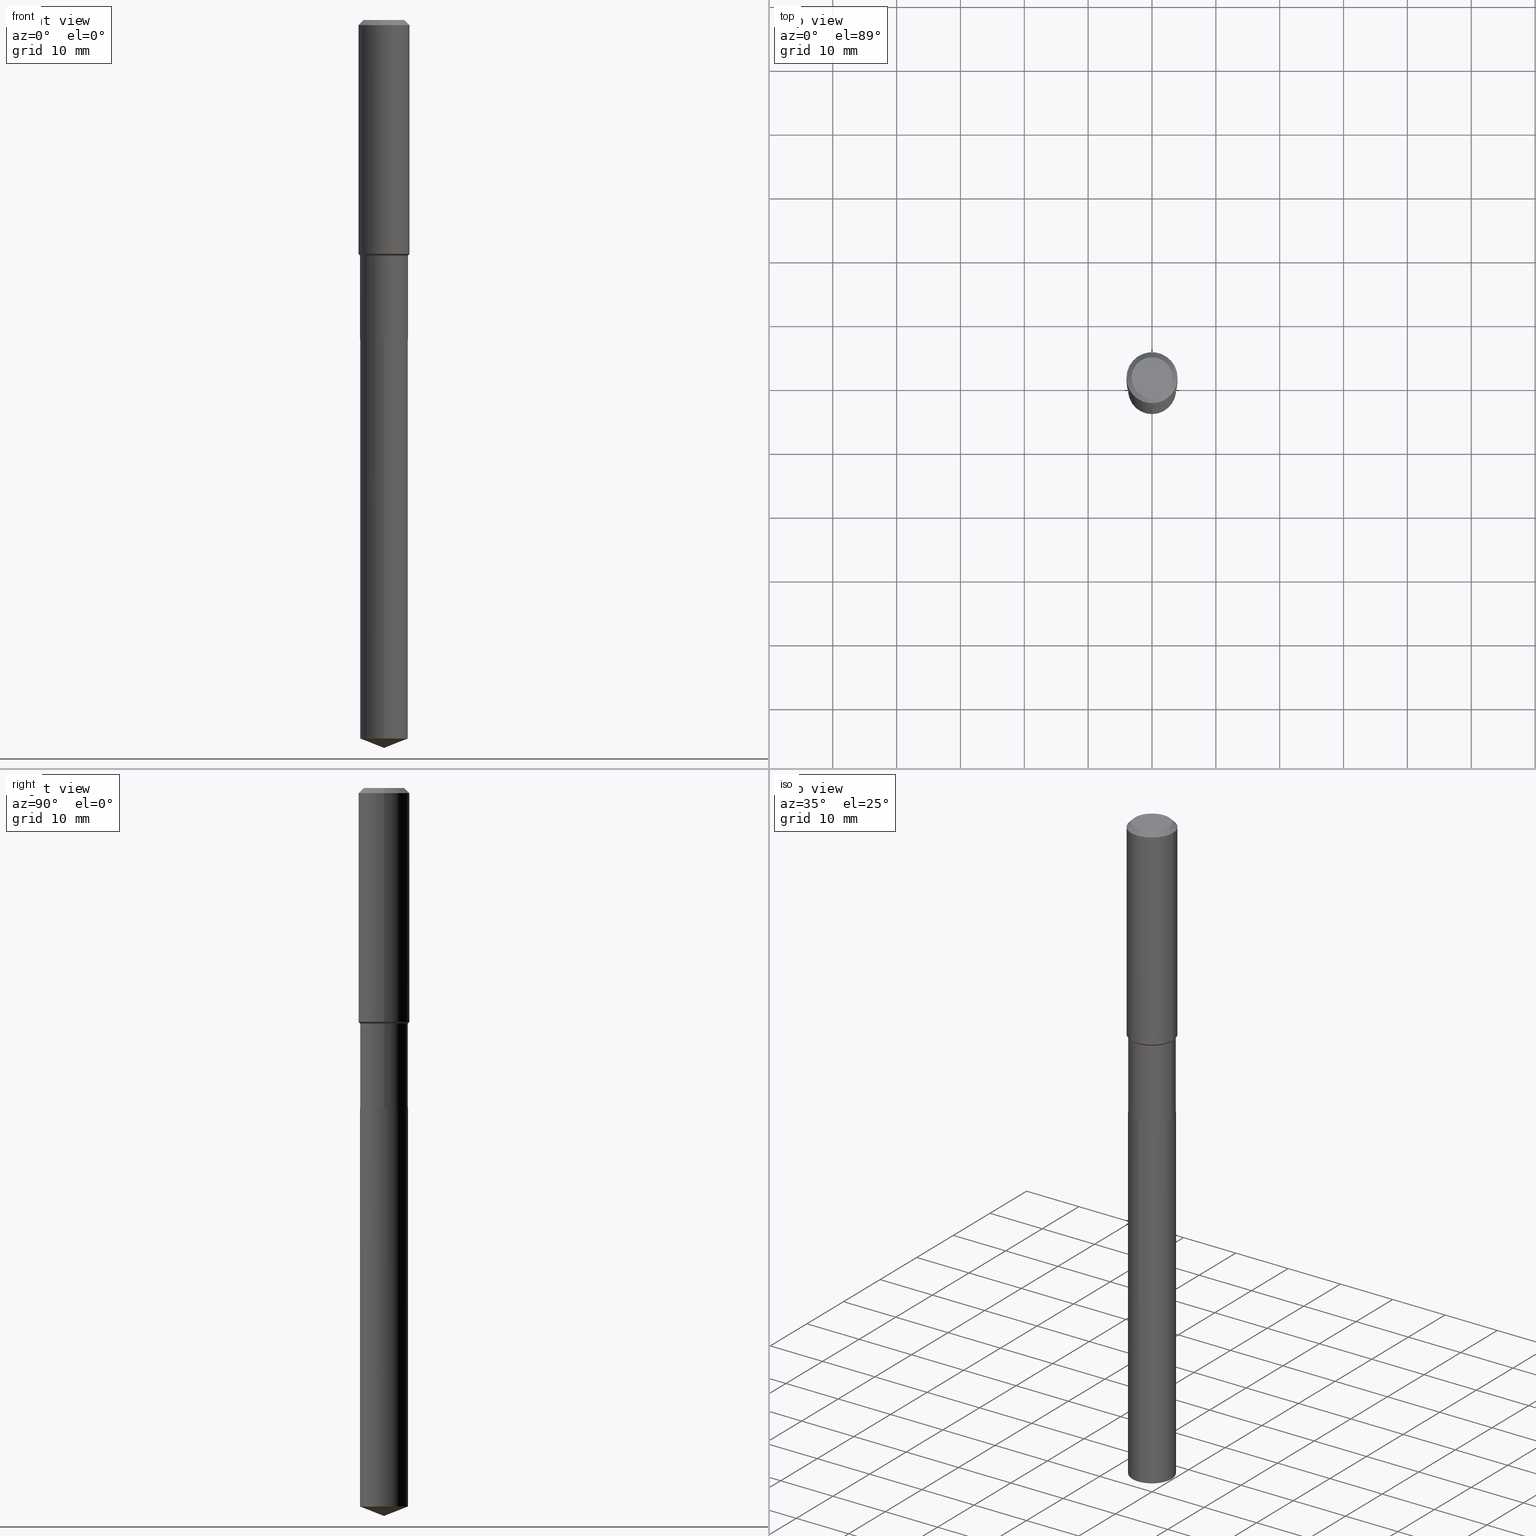
[diagram: canonical four-view strip — front | top / right | iso, engineering-drawing reading convention]
A machine part, canonical four-view strip (front | top / right | iso — engineering-drawing reading convention). The complete STEP part file that produces these views, byte-faithful:
ISO-10303-21;
HEADER;
FILE_DESCRIPTION (( 'STEP AP203' ),
    '1' );
FILE_NAME ('66651.STEP',
    '2024-04-25T02:53:25',
    ( '' ),
    ( '' ),
    'SwSTEP 2.0',
    'SolidWorks 2023',
    '' );
FILE_SCHEMA (( 'CONFIG_CONTROL_DESIGN' ));
ENDSEC;

DATA;
#1 = DIRECTION ( 'NONE',  ( -2.445397477310179660E-29, 3.491583485851871163E-15, 1.000000000000000000 ) ) ;
#2 = ORIENTED_EDGE ( 'NONE', *, *, #364, .T. ) ;
#3 = CC_DESIGN_PERSON_AND_ORGANIZATION_ASSIGNMENT ( #377, #331, ( #363 ) ) ;
#4 = MECHANICAL_CONTEXT ( 'NONE', #149, 'mechanical' ) ;
#5 = ADVANCED_FACE ( 'NONE', ( #78 ), #99, .T. ) ;
#6 = DIRECTION ( 'NONE',  ( -2.445397477310179380E-29, 3.491583485851871163E-15, 1.000000000000000000 ) ) ;
#7 = ORIENTED_EDGE ( 'NONE', *, *, #326, .F. ) ;
#8 = VERTEX_POINT ( 'NONE', #189 ) ;
#9 = CARTESIAN_POINT ( 'NONE',  ( 1.083334689510655990E-28, -1.546765035066167871E-14, -4.430039118275453269 ) ) ;
#10 = EDGE_CURVE ( 'NONE', #184, #261, #487, .T. ) ;
#11 = CIRCLE ( 'NONE', #145, 0.1575000000000000011 ) ;
#12 = FACE_OUTER_BOUND ( 'NONE', #142, .T. ) ;
#13 = EDGE_LOOP ( 'NONE', ( #130, #382 ) ) ;
#14 = CYLINDRICAL_SURFACE ( 'NONE', #399, 0.1476500000000000035 ) ;
#15 = CARTESIAN_POINT ( 'NONE',  ( 0.000000000000000000, 0.000000000000000000, 0.000000000000000000 ) ) ;
#16 = AXIS2_PLACEMENT_3D ( 'NONE', #15, #192, #379 ) ;
#17 = CARTESIAN_POINT ( 'NONE',  ( -8.529991786413033970E-28, 1.217931928410080037E-13, 34.88187874015748235 ) ) ;
#18 = DIRECTION ( 'NONE',  ( -2.445468806185136597E-29, 3.491481338843145583E-15, 1.000000000000000000 ) ) ;
#19 = EDGE_CURVE ( 'NONE', #422, #332, #454, .T. ) ;
#20 = CARTESIAN_POINT ( 'NONE',  ( 0.000000000000000000, 0.000000000000000000, 0.000000000000000000 ) ) ;
#21 = EDGE_LOOP ( 'NONE', ( #133, #483, #415, #67 ) ) ;
#22 = ADVANCED_FACE ( 'NONE', ( #310 ), #237, .T. ) ;
#23 = CALENDAR_DATE ( 2024, 24, 4 ) ;
#24 = DIRECTION ( 'NONE',  ( 1.000000000000000000, -6.982962677686267499E-15, 0.000000000000000000 ) ) ;
#25 = PERSON_AND_ORGANIZATION ( #357, #400 ) ;
#26 = ORIENTED_EDGE ( 'NONE', *, *, #210, .F. ) ;
#27 = DIRECTION ( 'NONE',  ( 1.000000000000000000, -6.982962677686266711E-15, 0.000000000000000000 ) ) ;
#28 = PLANE ( 'NONE',  #405 ) ;
#29 = DIRECTION ( 'NONE',  ( -2.445468806185136597E-29, 3.491481338843145583E-15, 1.000000000000000000 ) ) ;
#30 = VERTEX_POINT ( 'NONE', #93 ) ;
#31 = CONICAL_SURFACE ( 'NONE', #434, 0.1471500000000000030, 0.7853981633975678500 ) ;
#32 = VECTOR ( 'NONE', #34, 39.37007874015748143 ) ;
#33 = CARTESIAN_POINT ( 'NONE',  ( 7.703226739483228723E-31, -1.099816621735597661E-16, -0.03150000000000019451 ) ) ;
#34 = DIRECTION ( 'NONE',  ( -2.445468806185136877E-29, 3.491481338843145188E-15, 1.000000000000000000 ) ) ;
#35 = CARTESIAN_POINT ( 'NONE',  ( 1.049116349349836070E-15, 0.1476499999999931201, -1.968500000000000361 ) ) ;
#36 = DIRECTION ( 'NONE',  ( -2.445397477310179660E-29, 3.491583485851871163E-15, 1.000000000000000000 ) ) ;
#37 = DIRECTION ( 'NONE',  ( 6.982962677686265922E-15, 1.000000000000000000, -3.491583485851871163E-15 ) ) ;
#38 = AXIS2_PLACEMENT_3D ( 'NONE', #95, #407, #370 ) ;
#39 = APPROVAL ( #367, 'UNSPECIFIED' ) ;
#40 = DIRECTION ( 'NONE',  ( -0.7071067811866320607, 7.493145998870660238E-15, 0.7071067811864629737 ) ) ;
#41 = ORIENTED_EDGE ( 'NONE', *, *, #480, .F. ) ;
#42 = DIRECTION ( 'NONE',  ( -2.445468806185136597E-29, 3.491481338843145583E-15, 1.000000000000000000 ) ) ;
#43 = ORIENTED_EDGE ( 'NONE', *, *, #349, .T. ) ;
#44 = ORIENTED_EDGE ( 'NONE', *, *, #356, .F. ) ;
#45 = CARTESIAN_POINT ( 'NONE',  ( 3.550331612819581366E-29, -5.068932607732478922E-15, -1.451799999999999979 ) ) ;
#46 = ORIENTED_EDGE ( 'NONE', *, *, #275, .T. ) ;
#47 = VECTOR ( 'NONE', #276, 39.37007874015748143 ) ;
#48 = PERSON_AND_ORGANIZATION_ROLE ( 'design_owner' ) ;
#49 = DIRECTION ( 'NONE',  ( -6.497071151882111159E-15, -0.9304175679820234635, 0.3665012267243001332 ) ) ;
#50 = ADVANCED_FACE ( 'NONE', ( #340 ), #404, .T. ) ;
#51 = DIRECTION ( 'NONE',  ( -2.445468806185136597E-29, 3.491481338843145583E-15, 1.000000000000000000 ) ) ;
#52 = DATE_AND_TIME ( #394, #235 ) ;
#53 = FACE_OUTER_BOUND ( 'NONE', #21, .T. ) ;
#54 = CARTESIAN_POINT ( 'NONE',  ( 0.1575000000000000011, -1.190510096822576026E-15, -0.03150000000000019451 ) ) ;
#55 = ADVANCED_BREP_SHAPE_REPRESENTATION ( '66651', ( #163, #335, #16 ), #328 ) ;
#56 = AXIS2_PLACEMENT_3D ( 'NONE', #239, #247, #474 ) ;
#57 = DIRECTION ( 'NONE',  ( -1.000000000000000000, 6.982962677686265922E-15, -4.876176775795935793E-29 ) ) ;
#58 = CALENDAR_DATE ( 2024, 24, 4 ) ;
#59 = CARTESIAN_POINT ( 'NONE',  ( 0.1471500000000000030, -7.900523973534265784E-15, -1.968500000000000139 ) ) ;
#60 = DATE_TIME_ROLE ( 'classification_date' ) ;
#61 = VERTEX_POINT ( 'NONE', #318 ) ;
#62 = LINE ( 'NONE', #319, #178 ) ;
#63 = ADVANCED_FACE ( 'NONE', ( #413 ), #31, .T. ) ;
#64 = FACE_OUTER_BOUND ( 'NONE', #372, .T. ) ;
#65 = PLANE ( 'NONE',  #479 ) ;
#66 = VECTOR ( 'NONE', #113, 39.37007874015748143 ) ;
#67 = ORIENTED_EDGE ( 'NONE', *, *, #115, .F. ) ;
#68 = CIRCLE ( 'NONE', #38, 0.1575000000000000011 ) ;
#69 = AXIS2_PLACEMENT_3D ( 'NONE', #448, #134, #79 ) ;
#70 = PERSON_AND_ORGANIZATION ( #357, #400 ) ;
#71 = EDGE_LOOP ( 'NONE', ( #2, #339, #212, #7 ) ) ;
#72 = CARTESIAN_POINT ( 'NONE',  ( 4.813905344975441835E-29, -6.872981015512731707E-15, -1.968500000000000139 ) ) ;
#73 = ORIENTED_EDGE ( 'NONE', *, *, #250, .T. ) ;
#74 = VECTOR ( 'NONE', #159, 39.37007874015748143 ) ;
#75 = AXIS2_PLACEMENT_3D ( 'NONE', #218, #329, #455 ) ;
#76 = DIRECTION ( 'NONE',  ( -2.445468806185136597E-29, 3.491481338843145583E-15, 1.000000000000000000 ) ) ;
#77 = EDGE_CURVE ( 'NONE', #30, #261, #139, .T. ) ;
#78 = FACE_OUTER_BOUND ( 'NONE', #220, .T. ) ;
#79 = DIRECTION ( 'NONE',  ( 1.000000000000000000, -6.982962677686266711E-15, 4.876176775795935793E-29 ) ) ;
#80 = ORIENTED_EDGE ( 'NONE', *, *, #364, .F. ) ;
#81 = EDGE_CURVE ( 'NONE', #424, #124, #150, .T. ) ;
#82 = PERSON_AND_ORGANIZATION ( #357, #400 ) ;
#83 = CARTESIAN_POINT ( 'NONE',  ( -0.1476500000000000035, -4.920967591938107008E-15, -1.968000000000000194 ) ) ;
#84 = ORIENTED_EDGE ( 'NONE', *, *, #277, .F. ) ;
#85 = DIRECTION ( 'NONE',  ( -6.982962677686266711E-15, -1.000000000000000000, 3.700437512582815297E-15 ) ) ;
#86 = AXIS2_PLACEMENT_3D ( 'NONE', #272, #90, #435 ) ;
#87 = CC_DESIGN_DATE_AND_TIME_ASSIGNMENT ( #470, #60, ( #179 ) ) ;
#88 = DIRECTION ( 'NONE',  ( -2.438088387897960049E-29, 3.491481338843145188E-15, 1.000000000000000000 ) ) ;
#89 = CARTESIAN_POINT ( 'NONE',  ( 1.136379234426400663E-28, -1.512435428908050663E-14, -4.488199999999999079 ) ) ;
#90 = DIRECTION ( 'NONE',  ( -2.445468806185136597E-29, 3.491481338843145583E-15, 1.000000000000000000 ) ) ;
#91 = FACE_OUTER_BOUND ( 'NONE', #222, .T. ) ;
#92 = EDGE_LOOP ( 'NONE', ( #104, #227, #462 ) ) ;
#93 = CARTESIAN_POINT ( 'NONE',  ( 1.049116349349896615E-15, 0.1476499999999931201, -1.968500000000000583 ) ) ;
#94 = EDGE_LOOP ( 'NONE', ( #396, #111, #155, #389 ) ) ;
#95 = CARTESIAN_POINT ( 'NONE',  ( 7.703226739483228723E-31, -1.099816621735597661E-16, -0.03150000000000019451 ) ) ;
#96 = ORIENTED_EDGE ( 'NONE', *, *, #411, .F. ) ;
#97 = EDGE_LOOP ( 'NONE', ( #230, #43 ) ) ;
#98 = EDGE_CURVE ( 'NONE', #422, #233, #352, .T. ) ;
#99 = CONICAL_SURFACE ( 'NONE', #224, 0.1476499999999999480, 0.7853981633974509435 ) ;
#100 = ORIENTED_EDGE ( 'NONE', *, *, #115, .T. ) ;
#101 = CARTESIAN_POINT ( 'NONE',  ( 0.1575000000000001676, -6.134358138280462387E-15, -1.441949999999999843 ) ) ;
#102 = DIRECTION ( 'NONE',  ( -2.445468806185136877E-29, 3.491481338843145188E-15, 1.000000000000000000 ) ) ;
#103 = FACE_OUTER_BOUND ( 'NONE', #97, .T. ) ;
#104 = ORIENTED_EDGE ( 'NONE', *, *, #231, .F. ) ;
#105 = CARTESIAN_POINT ( 'NONE',  ( 2.270601667668166120E-29, -1.051513663727236721E-14, -1.968500000000000139 ) ) ;
#106 = CARTESIAN_POINT ( 'NONE',  ( 0.1260000000000000009, -1.027466422270894443E-15, 3.860086710919128072E-18 ) ) ;
#107 = AXIS2_PLACEMENT_3D ( 'NONE', #9, #144, #457 ) ;
#108 = ORIENTED_EDGE ( 'NONE', *, *, #81, .T. ) ;
#109 = APPLICATION_PROTOCOL_DEFINITION ( 'international standard', 'config_control_design', 1994, #381 ) ;
#110 = LINE ( 'NONE', #430, #438 ) ;
#111 = ORIENTED_EDGE ( 'NONE', *, *, #325, .T. ) ;
#112 = PRODUCT_DEFINITION_SHAPE ( 'NONE', 'NONE',  #238 ) ;
#113 = DIRECTION ( 'NONE',  ( -0.7071067811865451302, 2.468850131082231817E-15, -0.7071067811865499042 ) ) ;
#114 = CYLINDRICAL_SURFACE ( 'NONE', #320, 0.1575000000000000844 ) ;
#115 = EDGE_CURVE ( 'NONE', #164, #486, #465, .T. ) ;
#116 = DIRECTION ( 'NONE',  ( -2.445468806185136597E-29, 3.491481338843145583E-15, 1.000000000000000000 ) ) ;
#117 = VECTOR ( 'NONE', #6, 39.37007874015748143 ) ;
#118 = DIRECTION ( 'NONE',  ( -6.982962677686266711E-15, -1.000000000000000000, 3.700437512582815297E-15 ) ) ;
#119 = DIRECTION ( 'NONE',  ( 1.000000000000000000, -6.982962677686265922E-15, 4.876176775795935793E-29 ) ) ;
#120 = COORDINATED_UNIVERSAL_TIME_OFFSET ( 5, 0, .BEHIND. ) ;
#121 = CARTESIAN_POINT ( 'NONE',  ( 7.703226739483228723E-31, -1.099816621735597661E-16, -0.03150000000000019451 ) ) ;
#122 = VECTOR ( 'NONE', #246, 39.37007874015748143 ) ;
#123 = CALENDAR_DATE ( 2024, 24, 4 ) ;
#124 = VERTEX_POINT ( 'NONE', #401 ) ;
#125 = CARTESIAN_POINT ( 'NONE',  ( 0.1476499999999999480, -6.099967047092856006E-15, -1.451799999999999979 ) ) ;
#126 = ADVANCED_FACE ( 'NONE', ( #91 ), #304, .T. ) ;
#127 = LINE ( 'NONE', #54, #287 ) ;
#128 = EDGE_LOOP ( 'NONE', ( #259, #46, #100, #44 ) ) ;
#129 = ORIENTED_EDGE ( 'NONE', *, *, #277, .T. ) ;
#130 = ORIENTED_EDGE ( 'NONE', *, *, #480, .T. ) ;
#131 = CIRCLE ( 'NONE', #311, 0.1476499999999999480 ) ;
#132 = VECTOR ( 'NONE', #40, 39.37007874015748143 ) ;
#133 = ORIENTED_EDGE ( 'NONE', *, *, #411, .T. ) ;
#134 = DIRECTION ( 'NONE',  ( -2.445468806185136597E-29, 3.491481338843145583E-15, 1.000000000000000000 ) ) ;
#135 = LINE ( 'NONE', #173, #327 ) ;
#136 = CARTESIAN_POINT ( 'NONE',  ( 0.1575000000000000011, -1.209798283909146741E-15, -0.03150000000000019451 ) ) ;
#137 = CARTESIAN_POINT ( 'NONE',  ( -1.031034439360329161E-15, -0.1476500000000068868, -1.968499999999999250 ) ) ;
#138 = APPROVAL_DATE_TIME ( #172, #39 ) ;
#139 = CIRCLE ( 'NONE', #204, 0.1476500000000000035 ) ;
#140 = ORIENTED_EDGE ( 'NONE', *, *, #275, .F. ) ;
#141 = UNCERTAINTY_MEASURE_WITH_UNIT (LENGTH_MEASURE( 1.000000000000000082E-05 ), #337, 'distance_accuracy_value', 'NONE');
#142 = EDGE_LOOP ( 'NONE', ( #301, #371, #41, #307 ) ) ;
#143 = ORIENTED_EDGE ( 'NONE', *, *, #459, .F. ) ;
#144 = DIRECTION ( 'NONE',  ( -2.445397477310179660E-29, 3.491583485851871163E-15, 1.000000000000000000 ) ) ;
#145 = AXIS2_PLACEMENT_3D ( 'NONE', #393, #116, #161 ) ;
#146 = APPROVAL_PERSON_ORGANIZATION ( #70, #408, #368 ) ;
#147 = ORIENTED_EDGE ( 'NONE', *, *, #269, .T. ) ;
#148 = DIRECTION ( 'NONE',  ( 1.000000000000000000, -6.982962677686266711E-15, 0.000000000000000000 ) ) ;
#149 = APPLICATION_CONTEXT ( 'configuration controlled 3d designs of mechanical parts and assemblies' ) ;
#150 = LINE ( 'NONE', #199, #66 ) ;
#151 = DIRECTION ( 'NONE',  ( 1.000000000000000000, -6.982962677686265922E-15, 4.876281427513067258E-29 ) ) ;
#152 = CONICAL_SURFACE ( 'NONE', #362, 0.1471500000000000030, 0.7853981633975678500 ) ;
#153 = EDGE_CURVE ( 'NONE', #456, #486, #127, .T. ) ;
#154 = DIRECTION ( 'NONE',  ( -2.445468806185136597E-29, 3.491481338843145583E-15, 1.000000000000000000 ) ) ;
#155 = ORIENTED_EDGE ( 'NONE', *, *, #326, .T. ) ;
#156 = COORDINATED_UNIVERSAL_TIME_OFFSET ( 5, 0, .BEHIND. ) ;
#157 = AXIS2_PLACEMENT_3D ( 'NONE', #354, #214, #409 ) ;
#158 = PERSON_AND_ORGANIZATION ( #357, #400 ) ;
#159 = DIRECTION ( 'NONE',  ( 0.7071067811866320607, -2.468850131083142557E-15, 0.7071067811864629737 ) ) ;
#160 = LOCAL_TIME ( 22, 53, 25.00000000000000000, #314 ) ;
#161 = DIRECTION ( 'NONE',  ( 1.000000000000000000, -6.982962677686265922E-15, 0.000000000000000000 ) ) ;
#162 = EDGE_CURVE ( 'NONE', #184, #61, #295, .T. ) ;
#163 = MANIFOLD_SOLID_BREP ( 'Body-Move/Copy2[1]', #361 ) ;
#164 = VERTEX_POINT ( 'NONE', #101 ) ;
#165 = CARTESIAN_POINT ( 'NONE',  ( -1.031034439360269207E-15, -0.1476500000000155188, -4.430039118275453269 ) ) ;
#166 = CARTESIAN_POINT ( 'NONE',  ( -0.1471500000000000030, -5.824768152667633850E-15, -1.968500000000000139 ) ) ;
#167 = ORIENTED_EDGE ( 'NONE', *, *, #219, .T. ) ;
#168 = AXIS2_PLACEMENT_3D ( 'NONE', #198, #18, #402 ) ;
#169 = CIRCLE ( 'NONE', #75, 0.1476500000000000035 ) ;
#170 = EDGE_CURVE ( 'NONE', #332, #164, #135, .T. ) ;
#171 = DIRECTION ( 'NONE',  ( 1.000000000000000000, -6.982962677686267499E-15, 0.000000000000000000 ) ) ;
#172 = DATE_AND_TIME ( #376, #427 ) ;
#173 = CARTESIAN_POINT ( 'NONE',  ( 0.1476499999999999480, -6.099967047092856006E-15, -1.451799999999999979 ) ) ;
#174 = DIRECTION ( 'NONE',  ( -1.000000000000000000, 6.982962677686265922E-15, 0.000000000000000000 ) ) ;
#175 = DIRECTION ( 'NONE',  ( 2.445468806185136597E-29, -3.491481338843145583E-15, -1.000000000000000000 ) ) ;
#176 = ORIENTED_EDGE ( 'NONE', *, *, #19, .F. ) ;
#177 = EDGE_CURVE ( 'NONE', #332, #8, #131, .T. ) ;
#178 = VECTOR ( 'NONE', #360, 39.37007874015748143 ) ;
#179 = SECURITY_CLASSIFICATION ( '', '', #472 ) ;
#180 = DIRECTION ( 'NONE',  ( 1.000000000000000000, -6.982962677686266711E-15, 0.000000000000000000 ) ) ;
#181 = VERTEX_POINT ( 'NONE', #366 ) ;
#182 = DIRECTION ( 'NONE',  ( -2.445468806185136597E-29, 3.491481338843145583E-15, 1.000000000000000000 ) ) ;
#183 = CYLINDRICAL_SURFACE ( 'NONE', #305, 0.1575000000000000844 ) ;
#184 = VERTEX_POINT ( 'NONE', #165 ) ;
#185 = ORIENTED_EDGE ( 'NONE', *, *, #153, .T. ) ;
#186 = ORIENTED_EDGE ( 'NONE', *, *, #373, .F. ) ;
#187 = APPROVAL_STATUS ( 'not_yet_approved' ) ;
#188 = AXIS2_PLACEMENT_3D ( 'NONE', #475, #358, #283 ) ;
#189 = CARTESIAN_POINT ( 'NONE',  ( -0.1476499999999999480, -4.920967591938107008E-15, -1.451799999999999979 ) ) ;
#190 = FACE_OUTER_BOUND ( 'NONE', #13, .T. ) ;
#191 = LINE ( 'NONE', #467, #74 ) ;
#192 = DIRECTION ( 'NONE',  ( 0.000000000000000000, 0.000000000000000000, 1.000000000000000000 ) ) ;
#193 = APPROVAL ( #187, 'UNSPECIFIED' ) ;
#194 = DIRECTION ( 'NONE',  ( 2.445468806185136597E-29, -3.491481338843145583E-15, -1.000000000000000000 ) ) ;
#195 = DIRECTION ( 'NONE',  ( 0.7071067811865451302, -7.319954787623248157E-15, -0.7071067811865499042 ) ) ;
#196 = AXIS2_PLACEMENT_3D ( 'NONE', #72, #29, #171 ) ;
#197 = LOCAL_TIME ( 22, 53, 25.00000000000000000, #120 ) ;
#198 = CARTESIAN_POINT ( 'NONE',  ( 3.526243745078657437E-29, -5.034541516544873329E-15, -1.441949999999999843 ) ) ;
#199 = CARTESIAN_POINT ( 'NONE',  ( -0.1575000000000000011, 9.898349595620272334E-16, -0.03150000000000019451 ) ) ;
#200 = CC_DESIGN_PERSON_AND_ORGANIZATION_ASSIGNMENT ( #447, #279, ( #363 ) ) ;
#201 = ORIENTED_EDGE ( 'NONE', *, *, #10, .T. ) ;
#202 = CARTESIAN_POINT ( 'NONE',  ( 3.550331612819581366E-29, -5.068932607732478922E-15, -1.451799999999999979 ) ) ;
#203 = CYLINDRICAL_SURFACE ( 'NONE', #188, 0.1476499999999999757 ) ;
#204 = AXIS2_PLACEMENT_3D ( 'NONE', #488, #36, #453 ) ;
#205 = DIRECTION ( 'NONE',  ( -2.445468806185136597E-29, 3.491481338843145583E-15, 1.000000000000000000 ) ) ;
#206 = CIRCLE ( 'NONE', #225, 0.1260000000000000009 ) ;
#207 = AXIS2_PLACEMENT_3D ( 'NONE', #268, #461, #270 ) ;
#208 = ORIENTED_EDGE ( 'NONE', *, *, #296, .F. ) ;
#209 = CC_DESIGN_DATE_AND_TIME_ASSIGNMENT ( #316, #440, ( #238 ) ) ;
#210 = EDGE_CURVE ( 'NONE', #61, #184, #374, .T. ) ;
#211 = CARTESIAN_POINT ( 'NONE',  ( 4.813905344975440714E-29, -6.872981015512730918E-15, -1.968499999999999694 ) ) ;
#212 = ORIENTED_EDGE ( 'NONE', *, *, #98, .F. ) ;
#213 = ADVANCED_FACE ( 'NONE', ( #190 ), #388, .F. ) ;
#214 = DIRECTION ( 'NONE',  ( -2.445397477310179660E-29, 3.491583485851871163E-15, 1.000000000000000000 ) ) ;
#215 = CIRCLE ( 'NONE', #207, 0.1476500000000000035 ) ;
#216 = FACE_OUTER_BOUND ( 'NONE', #378, .T. ) ;
#217 = DIRECTION ( 'NONE',  ( -2.445397477310179660E-29, 3.491583485851871163E-15, 1.000000000000000000 ) ) ;
#218 = CARTESIAN_POINT ( 'NONE',  ( 4.813905344975441835E-29, -6.872981015512731707E-15, -1.968500000000000139 ) ) ;
#219 = EDGE_CURVE ( 'NONE', #233, #422, #215, .T. ) ;
#220 = EDGE_LOOP ( 'NONE', ( #84, #73, #288, #140 ) ) ;
#221 = LENGTH_MEASURE_WITH_UNIT ( LENGTH_MEASURE( 0.02539999999999999897 ), #297 );
#222 = EDGE_LOOP ( 'NONE', ( #476, #419, #26 ) ) ;
#223 = FACE_OUTER_BOUND ( 'NONE', #343, .T. ) ;
#224 = AXIS2_PLACEMENT_3D ( 'NONE', #345, #298, #490 ) ;
#225 = AXIS2_PLACEMENT_3D ( 'NONE', #324, #274, #151 ) ;
#226 = PRODUCT_RELATED_PRODUCT_CATEGORY ( 'detail', '', ( #300 ) ) ;
#227 = ORIENTED_EDGE ( 'NONE', *, *, #385, .T. ) ;
#228 = CYLINDRICAL_SURFACE ( 'NONE', #69, 0.1476499999999999757 ) ;
#229 = ORIENTED_EDGE ( 'NONE', *, *, #98, .T. ) ;
#230 = ORIENTED_EDGE ( 'NONE', *, *, #296, .T. ) ;
#231 = EDGE_CURVE ( 'NONE', #323, #184, #110, .T. ) ;
#232 = DIRECTION ( 'NONE',  ( 1.000000000000000000, -6.982962677686270655E-15, 0.000000000000000000 ) ) ;
#233 = VERTEX_POINT ( 'NONE', #83 ) ;
#234 = VECTOR ( 'NONE', #293, 39.37007874015748143 ) ;
#235 = LOCAL_TIME ( 22, 53, 25.00000000000000000, #156 ) ;
#236 = ORIENTED_EDGE ( 'NONE', *, *, #153, .F. ) ;
#237 = CYLINDRICAL_SURFACE ( 'NONE', #417, 0.1476500000000000035 ) ;
#238 = PRODUCT_DEFINITION ( 'UNKNOWN', '', #363, #451 ) ;
#239 = CARTESIAN_POINT ( 'NONE',  ( -8.529991786413033970E-28, 1.217931928410080037E-13, 34.88187874015748235 ) ) ;
#240 = PERSON_AND_ORGANIZATION ( #357, #400 ) ;
#241 = APPLICATION_PROTOCOL_DEFINITION ( 'international standard', 'config_control_design', 1994, #149 ) ;
#242 = DIRECTION ( 'NONE',  ( -2.445468806185136877E-29, 3.491481338843145188E-15, 1.000000000000000000 ) ) ;
#243 = CIRCLE ( 'NONE', #196, 0.1471500000000000030 ) ;
#244 = DIRECTION ( 'NONE',  ( -2.445397477310179660E-29, 3.491583485851871163E-15, 1.000000000000000000 ) ) ;
#245 = LOCAL_TIME ( 22, 53, 25.00000000000000000, #248 ) ;
#246 = DIRECTION ( 'NONE',  ( 6.611014441532059489E-15, 0.9304175679820259059, 0.3665012267242935828 ) ) ;
#247 = DIRECTION ( 'NONE',  ( -2.445397477310179660E-29, 3.491583485851871163E-15, 1.000000000000000000 ) ) ;
#248 = COORDINATED_UNIVERSAL_TIME_OFFSET ( 5, 0, .BEHIND. ) ;
#249 = ORIENTED_EDGE ( 'NONE', *, *, #356, .T. ) ;
#250 = EDGE_CURVE ( 'NONE', #8, #332, #273, .T. ) ;
#251 = FACE_OUTER_BOUND ( 'NONE', #128, .T. ) ;
#252 = CARTESIAN_POINT ( 'NONE',  ( 3.526243745078657437E-29, -5.034541516544873329E-15, -1.441949999999999843 ) ) ;
#253 = EDGE_LOOP ( 'NONE', ( #236, #208, #108, #249 ) ) ;
#254 = CLOSED_SHELL ( 'NONE', ( #63, #315, #308, #50, #441, #392, #5, #414, #452, #262, #398, #369 ) ) ;
#255 = ADVANCED_FACE ( 'NONE', ( #12 ), #14, .T. ) ;
#256 = CARTESIAN_POINT ( 'NONE',  ( -9.439721640706201686E-47, 1.347742071746726764E-32, 3.860086710912459732E-18 ) ) ;
#257 = ORIENTED_EDGE ( 'NONE', *, *, #210, .T. ) ;
#258 = DIRECTION ( 'NONE',  ( 1.000000000000000000, -6.982962677686267499E-15, 0.000000000000000000 ) ) ;
#259 = ORIENTED_EDGE ( 'NONE', *, *, #303, .F. ) ;
#260 = AXIS2_PLACEMENT_3D ( 'NONE', #17, #244, #471 ) ;
#261 = VERTEX_POINT ( 'NONE', #341 ) ;
#262 = ADVANCED_FACE ( 'NONE', ( #103 ), #65, .F. ) ;
#263 = CARTESIAN_POINT ( 'NONE',  ( 0.1476500000000000035, -7.902269714203688077E-15, -1.968000000000000194 ) ) ;
#264 = ORIENTED_EDGE ( 'NONE', *, *, #19, .T. ) ;
#265 = CC_DESIGN_PERSON_AND_ORGANIZATION_ASSIGNMENT ( #158, #282, ( #179 ) ) ;
#266 = DIMENSIONAL_EXPONENTS ( 1.000000000000000000, 0.000000000000000000, 0.000000000000000000, 0.000000000000000000, 0.000000000000000000, 0.000000000000000000, 0.000000000000000000 ) ;
#267 = AXIS2_PLACEMENT_3D ( 'NONE', #271, #42, #232 ) ;
#268 = CARTESIAN_POINT ( 'NONE',  ( 4.812682610572349594E-29, -6.871235274843310993E-15, -1.968000000000000194 ) ) ;
#269 = EDGE_CURVE ( 'NONE', #486, #124, #11, .T. ) ;
#270 = DIRECTION ( 'NONE',  ( 1.000000000000000000, -6.982962677686270655E-15, 0.000000000000000000 ) ) ;
#271 = CARTESIAN_POINT ( 'NONE',  ( 4.812682610572349594E-29, -6.871235274843310993E-15, -1.968000000000000194 ) ) ;
#272 = CARTESIAN_POINT ( 'NONE',  ( 4.813905344975441835E-29, -6.872981015512731707E-15, -1.968500000000000139 ) ) ;
#273 = CIRCLE ( 'NONE', #391, 0.1476499999999999480 ) ;
#274 = DIRECTION ( 'NONE',  ( -2.445468806185136597E-29, 3.491481338843145583E-15, 1.000000000000000000 ) ) ;
#275 = EDGE_CURVE ( 'NONE', #181, #164, #280, .T. ) ;
#276 = DIRECTION ( 'NONE',  ( -2.445468806185136877E-29, 3.491481338843145188E-15, 1.000000000000000000 ) ) ;
#277 = EDGE_CURVE ( 'NONE', #8, #181, #62, .T. ) ;
#278 = APPROVAL_DATE_TIME ( #52, #193 ) ;
#279 = PERSON_AND_ORGANIZATION_ROLE ( 'design_supplier' ) ;
#280 = CIRCLE ( 'NONE', #168, 0.1575000000000001676 ) ;
#281 = CONICAL_SURFACE ( 'NONE', #481, 0.1575000000000000011, 0.7853981633974449483 ) ;
#282 = PERSON_AND_ORGANIZATION_ROLE ( 'classification_officer' ) ;
#283 = DIRECTION ( 'NONE',  ( 1.000000000000000000, -6.982962677686266711E-15, 4.876176775795935793E-29 ) ) ;
#284 = ORIENTED_EDGE ( 'NONE', *, *, #77, .F. ) ;
#285 = CC_DESIGN_PERSON_AND_ORGANIZATION_ASSIGNMENT ( #240, #313, ( #238 ) ) ;
#286 = ORIENTED_EDGE ( 'NONE', *, *, #177, .F. ) ;
#287 = VECTOR ( 'NONE', #195, 39.37007874015748143 ) ;
#288 = ORIENTED_EDGE ( 'NONE', *, *, #170, .T. ) ;
#289 = DIRECTION ( 'NONE',  ( -2.445468806185136597E-29, 3.491481338843145583E-15, 1.000000000000000000 ) ) ;
#290 = CARTESIAN_POINT ( 'NONE',  ( 4.813905344975441835E-29, -6.872981015512731707E-15, -1.968500000000000139 ) ) ;
#291 = CARTESIAN_POINT ( 'NONE',  ( 3.550331612819581366E-29, -5.068932607732478922E-15, -1.451799999999999979 ) ) ;
#292 = LINE ( 'NONE', #420, #132 ) ;
#293 = DIRECTION ( 'NONE',  ( -2.445397477310179380E-29, 3.491583485851871163E-15, 1.000000000000000000 ) ) ;
#294 = AXIS2_PLACEMENT_3D ( 'NONE', #202, #289, #148 ) ;
#295 = CIRCLE ( 'NONE', #157, 0.1476500000000000035 ) ;
#296 = EDGE_CURVE ( 'NONE', #424, #456, #206, .T. ) ;
#297 =( LENGTH_UNIT ( ) NAMED_UNIT ( * ) SI_UNIT ( $, .METRE. ) );
#298 = DIRECTION ( 'NONE',  ( -2.445468806185136597E-29, 3.491481338843145583E-15, 1.000000000000000000 ) ) ;
#299 = CARTESIAN_POINT ( 'NONE',  ( 0.000000000000000000, 0.000000000000000000, 0.000000000000000000 ) ) ;
#300 = PRODUCT ( '66651', '66651', '', ( #4 ) ) ;
#301 = ORIENTED_EDGE ( 'NONE', *, *, #162, .T. ) ;
#302 = CARTESIAN_POINT ( 'NONE',  ( -0.1260000000000000009, 9.348441284752484904E-16, 3.860086710906114178E-18 ) ) ;
#303 = EDGE_CURVE ( 'NONE', #181, #124, #350, .T. ) ;
#304 = CONICAL_SURFACE ( 'NONE', #56, 99.94676754583900902, 1.195550537616116182 ) ;
#305 = AXIS2_PLACEMENT_3D ( 'NONE', #299, #76, #416 ) ;
#306 = ORIENTED_EDGE ( 'NONE', *, *, #170, .F. ) ;
#307 = ORIENTED_EDGE ( 'NONE', *, *, #10, .F. ) ;
#308 = ADVANCED_FACE ( 'NONE', ( #53 ), #114, .T. ) ;
#309 = FACE_OUTER_BOUND ( 'NONE', #384, .T. ) ;
#310 = FACE_OUTER_BOUND ( 'NONE', #387, .T. ) ;
#311 = AXIS2_PLACEMENT_3D ( 'NONE', #291, #406, #27 ) ;
#312 = DIRECTION ( 'NONE',  ( 2.438088387897960049E-29, -3.491481338843145188E-15, -1.000000000000000000 ) ) ;
#313 = PERSON_AND_ORGANIZATION_ROLE ( 'creator' ) ;
#314 = COORDINATED_UNIVERSAL_TIME_OFFSET ( 5, 0, .BEHIND. ) ;
#315 = ADVANCED_FACE ( 'NONE', ( #309 ), #489, .T. ) ;
#316 = DATE_AND_TIME ( #58, #197 ) ;
#317 = ORIENTED_EDGE ( 'NONE', *, *, #325, .F. ) ;
#318 = CARTESIAN_POINT ( 'NONE',  ( 1.049116349349896615E-15, 0.1476499999999845714, -4.430039118275454157 ) ) ;
#319 = CARTESIAN_POINT ( 'NONE',  ( -0.1476499999999999480, -4.019816258382692156E-15, -1.451799999999999979 ) ) ;
#320 = AXIS2_PLACEMENT_3D ( 'NONE', #20, #51, #469 ) ;
#321 = APPROVAL_PERSON_ORGANIZATION ( #25, #39, #444 ) ;
#322 = SHAPE_DEFINITION_REPRESENTATION ( #112, #55 ) ;
#323 = VERTEX_POINT ( 'NONE', #437 ) ;
#324 = CARTESIAN_POINT ( 'NONE',  ( -9.439721640706201686E-47, 1.347742071746726764E-32, 3.860086710912459732E-18 ) ) ;
#325 = EDGE_CURVE ( 'NONE', #344, #386, #460, .T. ) ;
#326 = EDGE_CURVE ( 'NONE', #386, #422, #191, .T. ) ;
#327 = VECTOR ( 'NONE', #484, 39.37007874015748143 ) ;
#328 =( GEOMETRIC_REPRESENTATION_CONTEXT ( 3 ) GLOBAL_UNCERTAINTY_ASSIGNED_CONTEXT ( ( #141 ) ) GLOBAL_UNIT_ASSIGNED_CONTEXT ( ( #337, #423, #458 ) ) REPRESENTATION_CONTEXT ( 'NONE', 'WORKASPACE' ) );
#329 = DIRECTION ( 'NONE',  ( -2.445397477310179660E-29, 3.491583485851871163E-15, 1.000000000000000000 ) ) ;
#330 = CARTESIAN_POINT ( 'NONE',  ( -0.1476499999999999757, 1.049116349349787752E-15, -7.262807660761367809E-30 ) ) ;
#331 = PERSON_AND_ORGANIZATION_ROLE ( 'creator' ) ;
#332 = VERTEX_POINT ( 'NONE', #125 ) ;
#333 = AXIS2_PLACEMENT_3D ( 'NONE', #256, #410, #477 ) ;
#334 = APPROVAL_PERSON_ORGANIZATION ( #82, #193, #464 ) ;
#335 = MANIFOLD_SOLID_BREP ( 'Body-Move/Copy2[2]', #254 ) ;
#336 = CARTESIAN_POINT ( 'NONE',  ( 4.813905344975440714E-29, -6.872981015512730918E-15, -1.968499999999999694 ) ) ;
#337 =( CONVERSION_BASED_UNIT ( 'INCH', #221 ) LENGTH_UNIT ( ) NAMED_UNIT ( #266 ) );
#338 = CARTESIAN_POINT ( 'NONE',  ( 0.1575000000000000844, -1.099816621735587677E-15, 7.679978421878603638E-30 ) ) ;
#339 = ORIENTED_EDGE ( 'NONE', *, *, #432, .T. ) ;
#340 = FACE_OUTER_BOUND ( 'NONE', #429, .T. ) ;
#341 = CARTESIAN_POINT ( 'NONE',  ( -1.031034439360329161E-15, -0.1476500000000068868, -1.968499999999999472 ) ) ;
#342 = FACE_OUTER_BOUND ( 'NONE', #253, .T. ) ;
#343 = EDGE_LOOP ( 'NONE', ( #80, #317 ) ) ;
#344 = VERTEX_POINT ( 'NONE', #166 ) ;
#345 = CARTESIAN_POINT ( 'NONE',  ( 3.550331612819581366E-29, -5.068932607732478922E-15, -1.451799999999999979 ) ) ;
#346 = CIRCLE ( 'NONE', #333, 0.1260000000000000009 ) ;
#347 = CC_DESIGN_APPROVAL ( #193, ( #238 ) ) ;
#348 = DIRECTION ( 'NONE',  ( -1.000000000000000000, 6.982962677686265922E-15, 0.000000000000000000 ) ) ;
#349 = EDGE_CURVE ( 'NONE', #456, #424, #346, .T. ) ;
#350 = LINE ( 'NONE', #468, #47 ) ;
#351 = VECTOR ( 'NONE', #102, 39.37007874015748143 ) ;
#352 = CIRCLE ( 'NONE', #267, 0.1476500000000000035 ) ;
#353 = DIRECTION ( 'NONE',  ( 1.000000000000000000, -6.982962677686267499E-15, 0.000000000000000000 ) ) ;
#354 = CARTESIAN_POINT ( 'NONE',  ( 1.083334689510655990E-28, -1.546765035066167871E-14, -4.430039118275453269 ) ) ;
#355 = LINE ( 'NONE', #89, #122 ) ;
#356 = EDGE_CURVE ( 'NONE', #124, #486, #68, .T. ) ;
#357 = PERSON ( 'UNSPECIFIED', 'UNSPECIFIED', 'UNSPECIFIED', ('UNSPECIFIED'), ('UNSPECIFIED'), ('UNSPECIFIED') ) ;
#358 = DIRECTION ( 'NONE',  ( -2.445468806185136597E-29, 3.491481338843145583E-15, 1.000000000000000000 ) ) ;
#359 = DATE_AND_TIME ( #123, #245 ) ;
#360 = DIRECTION ( 'NONE',  ( -0.7071067811865493491, 7.493145998870360471E-15, 0.7071067811865456854 ) ) ;
#361 = CLOSED_SHELL ( 'NONE', ( #255, #403, #126, #22, #213 ) ) ;
#362 = AXIS2_PLACEMENT_3D ( 'NONE', #290, #446, #258 ) ;
#363 = PRODUCT_DEFINITION_FORMATION_WITH_SPECIFIED_SOURCE ( 'ANY', '', #300, .NOT_KNOWN. ) ;
#364 = EDGE_CURVE ( 'NONE', #386, #344, #243, .T. ) ;
#365 = APPROVAL_STATUS ( 'not_yet_approved' ) ;
#366 = CARTESIAN_POINT ( 'NONE',  ( -0.1575000000000001676, -3.915436707722714937E-15, -1.441949999999999843 ) ) ;
#367 = APPROVAL_STATUS ( 'not_yet_approved' ) ;
#368 = APPROVAL_ROLE ( '' ) ;
#369 = ADVANCED_FACE ( 'NONE', ( #482 ), #152, .T. ) ;
#370 = DIRECTION ( 'NONE',  ( 1.000000000000000000, -6.982962677686265922E-15, 0.000000000000000000 ) ) ;
#371 = ORIENTED_EDGE ( 'NONE', *, *, #459, .T. ) ;
#372 = EDGE_LOOP ( 'NONE', ( #186, #167, #264, #466 ) ) ;
#373 = EDGE_CURVE ( 'NONE', #233, #8, #412, .T. ) ;
#374 = CIRCLE ( 'NONE', #107, 0.1476500000000000035 ) ;
#375 = CC_DESIGN_APPROVAL ( #408, ( #179 ) ) ;
#376 = CALENDAR_DATE ( 2024, 24, 4 ) ;
#377 = PERSON_AND_ORGANIZATION ( #357, #400 ) ;
#378 = EDGE_LOOP ( 'NONE', ( #229, #433, #286, #176 ) ) ;
#379 = DIRECTION ( 'NONE',  ( 1.000000000000000000, 0.000000000000000000, 0.000000000000000000 ) ) ;
#380 = DIRECTION ( 'NONE',  ( 2.445397477310179380E-29, -3.491583485851871163E-15, -1.000000000000000000 ) ) ;
#381 = APPLICATION_CONTEXT ( 'configuration controlled 3d designs of mechanical parts and assemblies' ) ;
#382 = ORIENTED_EDGE ( 'NONE', *, *, #77, .T. ) ;
#383 = CC_DESIGN_APPROVAL ( #39, ( #363 ) ) ;
#384 = EDGE_LOOP ( 'NONE', ( #478, #185, #147, #463 ) ) ;
#385 = EDGE_CURVE ( 'NONE', #323, #61, #355, .T. ) ;
#386 = VERTEX_POINT ( 'NONE', #59 ) ;
#387 = EDGE_LOOP ( 'NONE', ( #143, #257, #201, #284 ) ) ;
#388 = PLANE ( 'NONE',  #443 ) ;
#389 = ORIENTED_EDGE ( 'NONE', *, *, #219, .F. ) ;
#390 = PERSON_AND_ORGANIZATION ( #357, #400 ) ;
#391 = AXIS2_PLACEMENT_3D ( 'NONE', #45, #182, #180 ) ;
#392 = ADVANCED_FACE ( 'NONE', ( #64 ), #203, .T. ) ;
#393 = CARTESIAN_POINT ( 'NONE',  ( 7.703226739483228723E-31, -1.099816621735597661E-16, -0.03150000000000019451 ) ) ;
#394 = CALENDAR_DATE ( 2024, 24, 4 ) ;
#395 = CARTESIAN_POINT ( 'NONE',  ( -4.719860820353100843E-47, 6.738710358733633822E-33, 1.930043355456229866E-18 ) ) ;
#396 = ORIENTED_EDGE ( 'NONE', *, *, #432, .F. ) ;
#397 = FACE_OUTER_BOUND ( 'NONE', #92, .T. ) ;
#398 = ADVANCED_FACE ( 'NONE', ( #223 ), #28, .F. ) ;
#399 = AXIS2_PLACEMENT_3D ( 'NONE', #336, #1, #85 ) ;
#400 = ORGANIZATION ( 'UNSPECIFIED', 'UNSPECIFIED', '' ) ;
#401 = CARTESIAN_POINT ( 'NONE',  ( -0.1575000000000000011, -1.453156780537057804E-15, -0.03150000000000019451 ) ) ;
#402 = DIRECTION ( 'NONE',  ( 1.000000000000000000, -6.982962677686267499E-15, 0.000000000000000000 ) ) ;
#403 = ADVANCED_FACE ( 'NONE', ( #397 ), #473, .T. ) ;
#404 = CONICAL_SURFACE ( 'NONE', #294, 0.1476499999999999480, 0.7853981633974509435 ) ;
#405 = AXIS2_PLACEMENT_3D ( 'NONE', #445, #88, #119 ) ;
#406 = DIRECTION ( 'NONE',  ( -2.445468806185136597E-29, 3.491481338843145583E-15, 1.000000000000000000 ) ) ;
#407 = DIRECTION ( 'NONE',  ( -2.445468806185136597E-29, 3.491481338843145583E-15, 1.000000000000000000 ) ) ;
#408 = APPROVAL ( #365, 'UNSPECIFIED' ) ;
#409 = DIRECTION ( 'NONE',  ( -6.982962677686266711E-15, -1.000000000000000000, 3.700437512582815297E-15 ) ) ;
#410 = DIRECTION ( 'NONE',  ( -2.445468806185136597E-29, 3.491481338843145583E-15, 1.000000000000000000 ) ) ;
#411 = EDGE_CURVE ( 'NONE', #164, #181, #418, .T. ) ;
#412 = LINE ( 'NONE', #330, #32 ) ;
#413 = FACE_OUTER_BOUND ( 'NONE', #71, .T. ) ;
#414 = ADVANCED_FACE ( 'NONE', ( #251 ), #183, .T. ) ;
#415 = ORIENTED_EDGE ( 'NONE', *, *, #269, .F. ) ;
#416 = DIRECTION ( 'NONE',  ( 1.000000000000000000, -6.982962677686267499E-15, 4.876176775795936353E-29 ) ) ;
#417 = AXIS2_PLACEMENT_3D ( 'NONE', #211, #217, #118 ) ;
#418 = CIRCLE ( 'NONE', #449, 0.1575000000000001676 ) ;
#419 = ORIENTED_EDGE ( 'NONE', *, *, #231, .T. ) ;
#420 = CARTESIAN_POINT ( 'NONE',  ( -0.1471500000000000030, -5.827417379841745051E-15, -1.968500000000000139 ) ) ;
#421 = CC_DESIGN_PERSON_AND_ORGANIZATION_ASSIGNMENT ( #390, #48, ( #300 ) ) ;
#422 = VERTEX_POINT ( 'NONE', #263 ) ;
#423 =( NAMED_UNIT ( * ) PLANE_ANGLE_UNIT ( ) SI_UNIT ( $, .RADIAN. ) );
#424 = VERTEX_POINT ( 'NONE', #302 ) ;
#425 = AXIS2_PLACEMENT_3D ( 'NONE', #121, #194, #348 ) ;
#426 = CARTESIAN_POINT ( 'NONE',  ( 4.813905344975441835E-29, -6.872981015512731707E-15, -1.968500000000000139 ) ) ;
#427 = LOCAL_TIME ( 22, 53, 25.00000000000000000, #428 ) ;
#428 = COORDINATED_UNIVERSAL_TIME_OFFSET ( 5, 0, .BEHIND. ) ;
#429 = EDGE_LOOP ( 'NONE', ( #431, #129, #96, #306 ) ) ;
#430 = CARTESIAN_POINT ( 'NONE',  ( 1.059404549109931292E-28, -1.621709356054687186E-14, -4.488199999999999079 ) ) ;
#431 = ORIENTED_EDGE ( 'NONE', *, *, #177, .T. ) ;
#432 = EDGE_CURVE ( 'NONE', #344, #233, #292, .T. ) ;
#433 = ORIENTED_EDGE ( 'NONE', *, *, #373, .T. ) ;
#434 = AXIS2_PLACEMENT_3D ( 'NONE', #426, #154, #24 ) ;
#435 = DIRECTION ( 'NONE',  ( 1.000000000000000000, -6.982962677686267499E-15, 0.000000000000000000 ) ) ;
#436 = VECTOR ( 'NONE', #242, 39.37007874015748143 ) ;
#437 = CARTESIAN_POINT ( 'NONE',  ( 1.097543295766354916E-28, -1.567092500120036717E-14, -4.488199999999999967 ) ) ;
#438 = VECTOR ( 'NONE', #49, 39.37007874015748854 ) ;
#439 = CC_DESIGN_SECURITY_CLASSIFICATION ( #179, ( #363 ) ) ;
#440 = DATE_TIME_ROLE ( 'creation_date' ) ;
#441 = ADVANCED_FACE ( 'NONE', ( #216 ), #228, .T. ) ;
#442 = APPROVAL_DATE_TIME ( #359, #408 ) ;
#443 = AXIS2_PLACEMENT_3D ( 'NONE', #105, #380, #37 ) ;
#444 = APPROVAL_ROLE ( '' ) ;
#445 = CARTESIAN_POINT ( 'NONE',  ( -2.899857587203679207E-30, -1.418204357144627130E-14, -1.968499999999999694 ) ) ;
#446 = DIRECTION ( 'NONE',  ( -2.445468806185136597E-29, 3.491481338843145583E-15, 1.000000000000000000 ) ) ;
#447 = PERSON_AND_ORGANIZATION ( #357, #400 ) ;
#448 = CARTESIAN_POINT ( 'NONE',  ( 0.000000000000000000, 0.000000000000000000, 0.000000000000000000 ) ) ;
#449 = AXIS2_PLACEMENT_3D ( 'NONE', #252, #205, #353 ) ;
#450 = CARTESIAN_POINT ( 'NONE',  ( 0.1476499999999999757, -1.031034439360377084E-15, 7.199675009462698285E-30 ) ) ;
#451 = DESIGN_CONTEXT ( 'detailed design', #381, 'design' ) ;
#452 = ADVANCED_FACE ( 'NONE', ( #342 ), #281, .T. ) ;
#453 = DIRECTION ( 'NONE',  ( -6.982962677686266711E-15, -1.000000000000000000, 3.700437512582815297E-15 ) ) ;
#454 = LINE ( 'NONE', #450, #351 ) ;
#455 = DIRECTION ( 'NONE',  ( -6.982962677686266711E-15, -1.000000000000000000, 3.700437512582815297E-15 ) ) ;
#456 = VERTEX_POINT ( 'NONE', #106 ) ;
#457 = DIRECTION ( 'NONE',  ( -6.982962677686266711E-15, -1.000000000000000000, 3.700437512582815297E-15 ) ) ;
#458 =( NAMED_UNIT ( * ) SI_UNIT ( $, .STERADIAN. ) SOLID_ANGLE_UNIT ( ) );
#459 = EDGE_CURVE ( 'NONE', #61, #30, #485, .T. ) ;
#460 = CIRCLE ( 'NONE', #86, 0.1471500000000000030 ) ;
#461 = DIRECTION ( 'NONE',  ( -2.445468806185136597E-29, 3.491481338843145583E-15, 1.000000000000000000 ) ) ;
#462 = ORIENTED_EDGE ( 'NONE', *, *, #162, .F. ) ;
#463 = ORIENTED_EDGE ( 'NONE', *, *, #81, .F. ) ;
#464 = APPROVAL_ROLE ( '' ) ;
#465 = LINE ( 'NONE', #338, #436 ) ;
#466 = ORIENTED_EDGE ( 'NONE', *, *, #250, .F. ) ;
#467 = CARTESIAN_POINT ( 'NONE',  ( 0.1471500000000000030, -7.900523973534265784E-15, -1.968500000000000139 ) ) ;
#468 = CARTESIAN_POINT ( 'NONE',  ( -0.1575000000000000844, 1.119104808822158392E-15, -7.747322767151481189E-30 ) ) ;
#469 = DIRECTION ( 'NONE',  ( 1.000000000000000000, -6.982962677686267499E-15, 4.876176775795936353E-29 ) ) ;
#470 = DATE_AND_TIME ( #23, #160 ) ;
#471 = DIRECTION ( 'NONE',  ( -6.982962677686265922E-15, -1.000000000000000000, 3.498627837350038143E-15 ) ) ;
#472 = SECURITY_CLASSIFICATION_LEVEL ( 'unclassified' ) ;
#473 = CONICAL_SURFACE ( 'NONE', #260, 99.94676754583900902, 1.195550537616116182 ) ;
#474 = DIRECTION ( 'NONE',  ( -6.982962677686265922E-15, -1.000000000000000000, 3.498627837350038143E-15 ) ) ;
#475 = CARTESIAN_POINT ( 'NONE',  ( 0.000000000000000000, 0.000000000000000000, 0.000000000000000000 ) ) ;
#476 = ORIENTED_EDGE ( 'NONE', *, *, #385, .F. ) ;
#477 = DIRECTION ( 'NONE',  ( 1.000000000000000000, -6.982962677686265922E-15, 4.876281427513067258E-29 ) ) ;
#478 = ORIENTED_EDGE ( 'NONE', *, *, #349, .F. ) ;
#479 = AXIS2_PLACEMENT_3D ( 'NONE', #395, #312, #57 ) ;
#480 = EDGE_CURVE ( 'NONE', #261, #30, #169, .T. ) ;
#481 = AXIS2_PLACEMENT_3D ( 'NONE', #33, #175, #174 ) ;
#482 = FACE_OUTER_BOUND ( 'NONE', #94, .T. ) ;
#483 = ORIENTED_EDGE ( 'NONE', *, *, #303, .T. ) ;
#484 = DIRECTION ( 'NONE',  ( 0.7071067811865493491, -2.468850131082276388E-15, 0.7071067811865456854 ) ) ;
#485 = LINE ( 'NONE', #35, #117 ) ;
#486 = VERTEX_POINT ( 'NONE', #136 ) ;
#487 = LINE ( 'NONE', #137, #234 ) ;
#488 = CARTESIAN_POINT ( 'NONE',  ( 4.813905344975441835E-29, -6.872981015512731707E-15, -1.968500000000000139 ) ) ;
#489 = CONICAL_SURFACE ( 'NONE', #425, 0.1575000000000000011, 0.7853981633974449483 ) ;
#490 = DIRECTION ( 'NONE',  ( 1.000000000000000000, -6.982962677686266711E-15, 0.000000000000000000 ) ) ;
ENDSEC;
END-ISO-10303-21;
